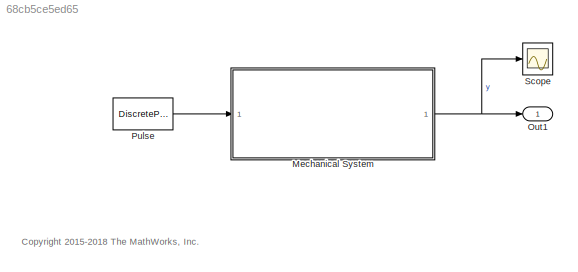
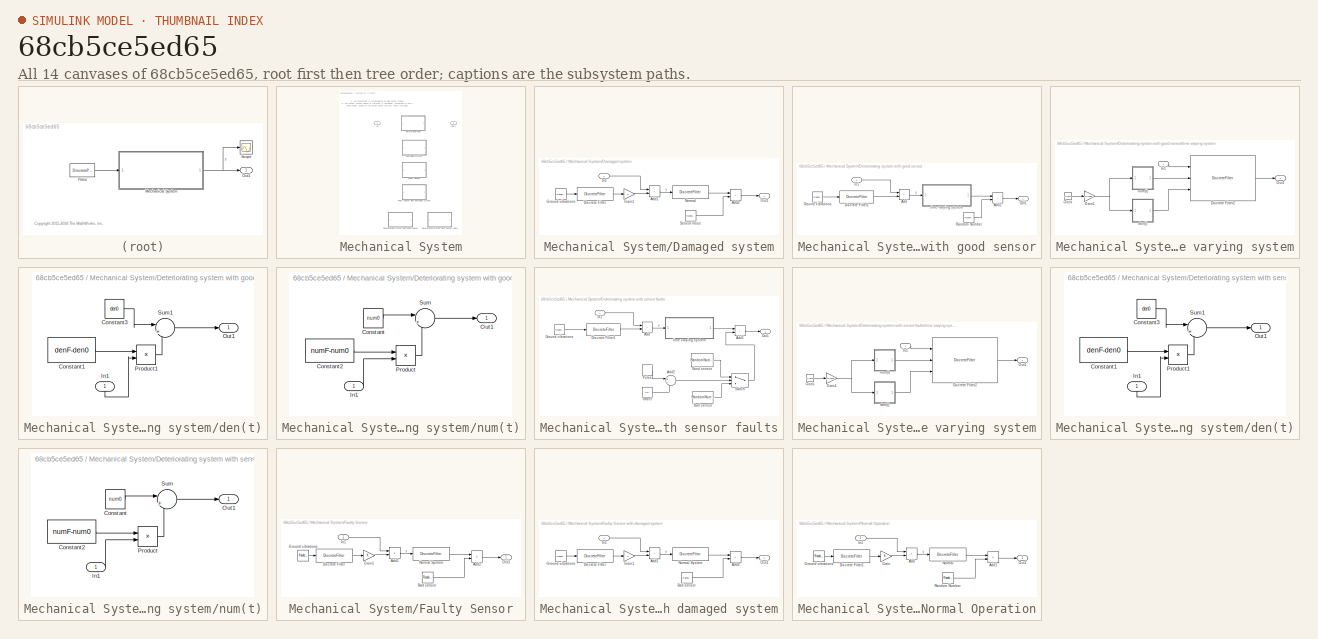
[diagram: thumbnail index - all 14 canvases of the model, root first then tree order]
MODEL slx_68cb5ce5ed65
KIND model
CONFIG AbsTol = auto
CONFIG EnableMultiTasking = on
CONFIG FixedStep = Ts
CONFIG MaxStep = auto
CONFIG MinStep = auto
CONFIG PreLoadFcn = Ts = 1/256;\nt=(0:5120)'*Ts;\nynoi = 0.2;\ngroundnoi = 1;\nPFnum = [0.00034    0.0017652   -0.0013829];\nPFden = [1       -1.896      0.91629];\nnum0 = [1     -0.10075     -0.26052     -0.24022];\nden0 = [1      -4.5049       8.2675      -7.7122       3.6508         -0.7];\nnumF = [1.2642     -0.12736     -0.32935     -0.30369];\ndenF = [1      -4.5674        8.511      -8.0697       3.8856     -0.75805];\n...<+73ch>
CONFIG RelTol = 1e-3
CONFIG SampleTimeConstraint = Unconstrained
CONFIG SolverName = FixedStepDiscrete
CONFIG StartTime = 0.0
CONFIG StopTime = t(end)
BLOCK [SubSystem] Mechanical System
  LabelModeActiveChoice = Normal
  Ports = [1, 1]
  RequestExecContextInheritance = off
  Variant = on
  VariantControlMode = label
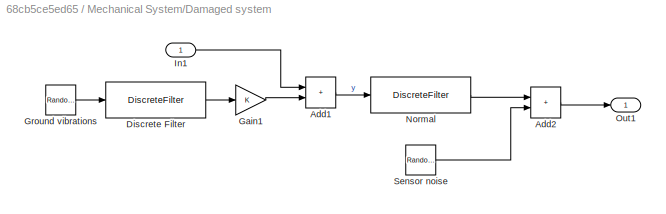
BLOCK [SubSystem] Mechanical System/Damaged system
  Ports = [1, 1]
  RequestExecContextInheritance = off
  VariantControl = DamagedSystem
BLOCK [Sum] Mechanical System/Damaged system/Add1
  IconShape = rectangular
  Ports = [2, 1]
BLOCK [Sum] Mechanical System/Damaged system/Add2
  IconShape = rectangular
  Ports = [2, 1]
BLOCK [DiscreteFilter] Mechanical System/Damaged system/Discrete Filter
  Denominator = PFden
  InputPortMap = u0
  Numerator = PFnum
  Ports = [1, 1]
BLOCK [Gain] Mechanical System/Damaged system/Gain1
BLOCK [RandomNumber] Mechanical System/Damaged system/Ground vibrations
  SampleTime = Ts
  Variance = groundnoi
BLOCK [Inport] Mechanical System/Damaged system/In1
BLOCK [DiscreteFilter] Mechanical System/Damaged system/Normal
  Denominator = denF
  InputPortMap = u0
  Numerator = numF
  Ports = [1, 1]
BLOCK [Outport] Mechanical System/Damaged system/Out1
  VectorParamsAs1DForOutWhenUnconnected = off
BLOCK [RandomNumber] Mechanical System/Damaged system/Sensor noise
  SampleTime = Ts
  Seed = 1
  Variance = ynoi
BLOCK [SubSystem] Mechanical System/Deteriorating system with good sensor
  Ports = [1, 1]
  RequestExecContextInheritance = off
  VariantControl = DeterioratingSystem
BLOCK [Sum] Mechanical System/Deteriorating system with good sensor/Add
  IconShape = rectangular
  Ports = [2, 1]
BLOCK [Sum] Mechanical System/Deteriorating system with good sensor/Add1
  IconShape = rectangular
  Ports = [2, 1]
BLOCK [DiscreteFilter] Mechanical System/Deteriorating system with good sensor/Discrete Filter1
  Denominator = PFden
  InputPortMap = u0
  Numerator = PFnum
  Ports = [1, 1]
BLOCK [RandomNumber] Mechanical System/Deteriorating system with good sensor/Ground vibrations
  SampleTime = Ts
  Seed = seed
  Variance = groundnoi
BLOCK [Inport] Mechanical System/Deteriorating system with good sensor/In1
BLOCK [Outport] Mechanical System/Deteriorating system with good sensor/Out1
  VectorParamsAs1DForOutWhenUnconnected = off
BLOCK [RandomNumber] Mechanical System/Deteriorating system with good sensor/Random Number
  SampleTime = Ts
  Variance = ynoi
BLOCK [SubSystem] Mechanical System/Deteriorating system with good sensor/time varying system
  Ports = [1, 1]
  RequestExecContextInheritance = off
BLOCK [Clock] Mechanical System/Deteriorating system with good sensor/time varying system/Clock
BLOCK [DiscreteFilter] Mechanical System/Deteriorating system with good sensor/time varying system/Discrete Filter2
  Denominator = PFden
  DenominatorSource = Input port
  InputPortMap = u0,p1,p3
  Numerator = PFnum
  NumeratorSource = Input port
  Ports = [3, 1]
  a0EqualsOne = on
BLOCK [Gain] Mechanical System/Deteriorating system with good sensor/time varying system/Gain1
  Gain = 1/t(end)
BLOCK [Inport] Mechanical System/Deteriorating system with good sensor/time varying system/In1
BLOCK [Outport] Mechanical System/Deteriorating system with good sensor/time varying system/Out1
  VectorParamsAs1DForOutWhenUnconnected = off
BLOCK [SubSystem] Mechanical System/Deteriorating system with good sensor/time varying system/den(t)
  Ports = [1, 1]
  RequestExecContextInheritance = off
BLOCK [Constant] Mechanical System/Deteriorating system with good sensor/time varying system/den(t)/Constant1
  SampleTime = Ts
  Value = denF-den0
BLOCK [Constant] Mechanical System/Deteriorating system with good sensor/time varying system/den(t)/Constant3
  SampleTime = Ts
  Value = den0
BLOCK [Inport] Mechanical System/Deteriorating system with good sensor/time varying system/den(t)/In1
  NameLocation = right
  SampleTime = Ts
BLOCK [Outport] Mechanical System/Deteriorating system with good sensor/time varying system/den(t)/Out1
  VectorParamsAs1DForOutWhenUnconnected = off
BLOCK [Product] Mechanical System/Deteriorating system with good sensor/time varying system/den(t)/Product1
  Ports = [2, 1]
BLOCK [Sum] Mechanical System/Deteriorating system with good sensor/time varying system/den(t)/Sum1
  Inputs = |++
  Ports = [2, 1]
BLOCK [SubSystem] Mechanical System/Deteriorating system with good sensor/time varying system/num(t)
  Ports = [1, 1]
  RequestExecContextInheritance = off
BLOCK [Constant] Mechanical System/Deteriorating system with good sensor/time varying system/num(t)/Constant
  SampleTime = Ts
  Value = num0
BLOCK [Constant] Mechanical System/Deteriorating system with good sensor/time varying system/num(t)/Constant2
  SampleTime = Ts
  Value = numF-num0
BLOCK [Inport] Mechanical System/Deteriorating system with good sensor/time varying system/num(t)/In1
  SampleTime = Ts
BLOCK [Outport] Mechanical System/Deteriorating system with good sensor/time varying system/num(t)/Out1
  VectorParamsAs1DForOutWhenUnconnected = off
BLOCK [Product] Mechanical System/Deteriorating system with good sensor/time varying system/num(t)/Product
  Ports = [2, 1]
BLOCK [Sum] Mechanical System/Deteriorating system with good sensor/time varying system/num(t)/Sum
  Inputs = |++
  Ports = [2, 1]
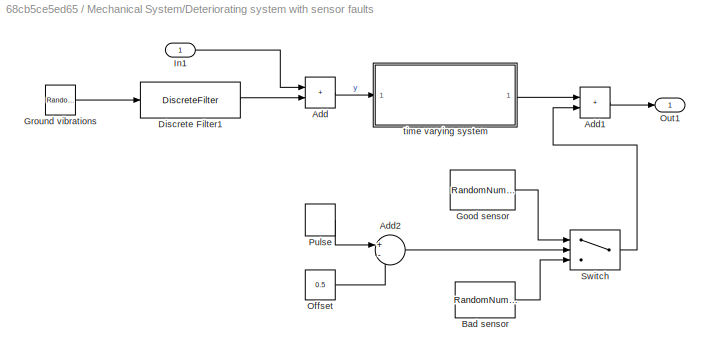
BLOCK [SubSystem] Mechanical System/Deteriorating system with sensor faults
  Ports = [1, 1]
  RequestExecContextInheritance = off
  VariantControl = DeterioratingSystemFaultySensor
BLOCK [Sum] Mechanical System/Deteriorating system with sensor faults/Add
  IconShape = rectangular
  Ports = [2, 1]
BLOCK [Sum] Mechanical System/Deteriorating system with sensor faults/Add1
  IconShape = rectangular
  Ports = [2, 1]
BLOCK [Sum] Mechanical System/Deteriorating system with sensor faults/Add2
  Inputs = +-
  Ports = [2, 1]
BLOCK [RandomNumber] Mechanical System/Deteriorating system with sensor faults/Bad sensor
  Mean = .1
  SampleTime = Ts
  Variance = 3
BLOCK [DiscreteFilter] Mechanical System/Deteriorating system with sensor faults/Discrete Filter1
  Denominator = [1       -1.896      0.91629]
  InputPortMap = u0
  Numerator = [0    0.0017652   -0.0013829]
  Ports = [1, 1]
BLOCK [RandomNumber] Mechanical System/Deteriorating system with sensor faults/Good sensor
  SampleTime = Ts
  Variance = ynoi
BLOCK [RandomNumber] Mechanical System/Deteriorating system with sensor faults/Ground vibrations
  SampleTime = Ts
  Variance = .5
BLOCK [Inport] Mechanical System/Deteriorating system with sensor faults/In1
BLOCK [Constant] Mechanical System/Deteriorating system with sensor faults/Offset
  Value = 0.5
BLOCK [Outport] Mechanical System/Deteriorating system with sensor faults/Out1
  VectorParamsAs1DForOutWhenUnconnected = off
BLOCK [DiscretePulseGenerator] Mechanical System/Deteriorating system with sensor faults/Pulse 
  Period = 1024*12
  Ports = [0, 1]
  PulseWidth = 512*12
  SampleTime = Ts
BLOCK [Switch] Mechanical System/Deteriorating system with sensor faults/Switch
  Criteria = u2 > Threshold
  InputSameDT = off
  SaturateOnIntegerOverflow = off
BLOCK [SubSystem] Mechanical System/Deteriorating system with sensor faults/time varying system
  Ports = [1, 1]
  RequestExecContextInheritance = off
BLOCK [Clock] Mechanical System/Deteriorating system with sensor faults/time varying system/Clock
BLOCK [DiscreteFilter] Mechanical System/Deteriorating system with sensor faults/time varying system/Discrete Filter2
  Denominator = PFden
  DenominatorSource = Input port
  InputPortMap = u0,p1,p3
  Numerator = PFnum
  NumeratorSource = Input port
  Ports = [3, 1]
  a0EqualsOne = on
BLOCK [Gain] Mechanical System/Deteriorating system with sensor faults/time varying system/Gain1
  Gain = 1/t(end)
BLOCK [Inport] Mechanical System/Deteriorating system with sensor faults/time varying system/In1
BLOCK [Outport] Mechanical System/Deteriorating system with sensor faults/time varying system/Out1
  VectorParamsAs1DForOutWhenUnconnected = off
BLOCK [SubSystem] Mechanical System/Deteriorating system with sensor faults/time varying system/den(t)
  Ports = [1, 1]
  RequestExecContextInheritance = off
BLOCK [Constant] Mechanical System/Deteriorating system with sensor faults/time varying system/den(t)/Constant1
  SampleTime = Ts
  Value = denF-den0
BLOCK [Constant] Mechanical System/Deteriorating system with sensor faults/time varying system/den(t)/Constant3
  SampleTime = Ts
  Value = den0
BLOCK [Inport] Mechanical System/Deteriorating system with sensor faults/time varying system/den(t)/In1
  NameLocation = right
  SampleTime = Ts
BLOCK [Outport] Mechanical System/Deteriorating system with sensor faults/time varying system/den(t)/Out1
  VectorParamsAs1DForOutWhenUnconnected = off
BLOCK [Product] Mechanical System/Deteriorating system with sensor faults/time varying system/den(t)/Product1
  Ports = [2, 1]
BLOCK [Sum] Mechanical System/Deteriorating system with sensor faults/time varying system/den(t)/Sum1
  Inputs = |++
  Ports = [2, 1]
BLOCK [SubSystem] Mechanical System/Deteriorating system with sensor faults/time varying system/num(t)
  Ports = [1, 1]
  RequestExecContextInheritance = off
BLOCK [Constant] Mechanical System/Deteriorating system with sensor faults/time varying system/num(t)/Constant
  SampleTime = Ts
  Value = num0
BLOCK [Constant] Mechanical System/Deteriorating system with sensor faults/time varying system/num(t)/Constant2
  SampleTime = Ts
  Value = numF-num0
BLOCK [Inport] Mechanical System/Deteriorating system with sensor faults/time varying system/num(t)/In1
  SampleTime = Ts
BLOCK [Outport] Mechanical System/Deteriorating system with sensor faults/time varying system/num(t)/Out1
  VectorParamsAs1DForOutWhenUnconnected = off
BLOCK [Product] Mechanical System/Deteriorating system with sensor faults/time varying system/num(t)/Product
  Ports = [2, 1]
BLOCK [Sum] Mechanical System/Deteriorating system with sensor faults/time varying system/num(t)/Sum
  Inputs = |++
  Ports = [2, 1]
BLOCK [SubSystem] Mechanical System/Faulty Sensor
  Ports = [1, 1]
  RequestExecContextInheritance = off
  VariantControl = FaultySensor
BLOCK [SubSystem] Mechanical System/Faulty Sensor with damaged system
  Ports = [1, 1]
  RequestExecContextInheritance = off
  VariantControl = DamagedSystemFaultySensor
BLOCK [Sum] Mechanical System/Faulty Sensor with damaged system/Add1
  IconShape = rectangular
  Ports = [2, 1]
BLOCK [Sum] Mechanical System/Faulty Sensor with damaged system/Add2
  IconShape = rectangular
  Ports = [2, 1]
BLOCK [RandomNumber] Mechanical System/Faulty Sensor with damaged system/Bad sensor
  Mean = .1
  SampleTime = Ts
  Variance = 3
BLOCK [DiscreteFilter] Mechanical System/Faulty Sensor with damaged system/Discrete Filter
  Denominator = PFden
  InputPortMap = u0
  Numerator = PFnum
  Ports = [1, 1]
BLOCK [Gain] Mechanical System/Faulty Sensor with damaged system/Gain1
BLOCK [RandomNumber] Mechanical System/Faulty Sensor with damaged system/Ground vibrations
  SampleTime = Ts
  Variance = groundnoi
BLOCK [Inport] Mechanical System/Faulty Sensor with damaged system/In1
BLOCK [DiscreteFilter] Mechanical System/Faulty Sensor with damaged system/Normal System
  Denominator = denF
  InputPortMap = u0
  Numerator = numF
  Ports = [1, 1]
BLOCK [Outport] Mechanical System/Faulty Sensor with damaged system/Out1
  VectorParamsAs1DForOutWhenUnconnected = off
BLOCK [Sum] Mechanical System/Faulty Sensor/Add1
  IconShape = rectangular
  Ports = [2, 1]
BLOCK [Sum] Mechanical System/Faulty Sensor/Add2
  IconShape = rectangular
  Ports = [2, 1]
BLOCK [RandomNumber] Mechanical System/Faulty Sensor/Bad sensor
  Mean = .1
  SampleTime = Ts
  Variance = 3
BLOCK [DiscreteFilter] Mechanical System/Faulty Sensor/Discrete Filter
  Denominator = PFden
  InputPortMap = u0
  Numerator = PFnum
  Ports = [1, 1]
BLOCK [Gain] Mechanical System/Faulty Sensor/Gain1
BLOCK [RandomNumber] Mechanical System/Faulty Sensor/Ground vibrations
  SampleTime = Ts
  Variance = groundnoi
BLOCK [Inport] Mechanical System/Faulty Sensor/In1
BLOCK [DiscreteFilter] Mechanical System/Faulty Sensor/Normal System
  Denominator = den0
  InputPortMap = u0
  Numerator = num0
  Ports = [1, 1]
BLOCK [Outport] Mechanical System/Faulty Sensor/Out1
  VectorParamsAs1DForOutWhenUnconnected = off
BLOCK [Inport] Mechanical System/In1
BLOCK [SubSystem] Mechanical System/Normal Operation
  Ports = [1, 1]
  RequestExecContextInheritance = off
  VariantControl = Normal
BLOCK [Sum] Mechanical System/Normal Operation/Add
  IconShape = rectangular
  Ports = [2, 1]
BLOCK [Sum] Mechanical System/Normal Operation/Add1
  IconShape = rectangular
  Ports = [2, 1]
BLOCK [DiscreteFilter] Mechanical System/Normal Operation/Discrete Filter1
  Denominator = PFden
  InputPortMap = u0
  Numerator = PFnum
  Ports = [1, 1]
BLOCK [Gain] Mechanical System/Normal Operation/Gain
BLOCK [RandomNumber] Mechanical System/Normal Operation/Ground vibrations
  SampleTime = Ts
  Variance = groundnoi
BLOCK [Inport] Mechanical System/Normal Operation/In1
BLOCK [DiscreteFilter] Mechanical System/Normal Operation/Normal
  Denominator = den0
  InputPortMap = u0
  Numerator = num0
  Ports = [1, 1]
BLOCK [Outport] Mechanical System/Normal Operation/Out1
  VectorParamsAs1DForOutWhenUnconnected = off
BLOCK [RandomNumber] Mechanical System/Normal Operation/Random Number
  SampleTime = Ts
  Variance = ynoi
BLOCK [Outport] Mechanical System/Out1
  VectorParamsAs1DForOutWhenUnconnected = off
BLOCK [Outport] Out1
  VectorParamsAs1DForOutWhenUnconnected = off
BLOCK [DiscretePulseGenerator] Pulse
  Amplitude = 5
  Period = 512
  Ports = [0, 1]
  SampleTime = Ts
BLOCK [Scope] Scope
  Floating = off
  NumInputPorts = 1
  Ports = [1]
  ScopeSpecificationString = Simulink.scopes.TimeScopeBlockCfg('CurrentConfiguration', extmgr.ConfigurationSet(extmgr.Configuration('Core','General UI',true),extmgr.Configuration('Core','Source UI',true),extmgr.Configuration('Sources','WiredSimulink',true),extmgr.Configuration('Visuals','Time Domain',true,'SerializedDisplays',{struct('MinYLimReal','-1356.99374','MaxYLimReal','1616.4642','YLabelReal','','MinYLimMag','  0.00000...<+1443ch>
ANNOTATION (root): <copyright redacted>
ANNOTATION Mechanical System: 1) Add Subsystem or Model blocks as valid variant choices. 2) You cannot connect blocks at this level. At simulation, connectivity is automatically determined, based on the active variant and port name matching.
LINE Mechanical System/Damaged system/Add1:1 -> Mechanical System/Damaged system/Normal:1
LINE Mechanical System/Damaged system/Add2:1 -> Mechanical System/Damaged system/Out1:1
LINE Mechanical System/Damaged system/Discrete Filter:1 -> Mechanical System/Damaged system/Gain1:1
LINE Mechanical System/Damaged system/Gain1:1 -> Mechanical System/Damaged system/Add1:2
LINE Mechanical System/Damaged system/Ground vibrations:1 -> Mechanical System/Damaged system/Discrete Filter:1
LINE Mechanical System/Damaged system/In1:1 -> Mechanical System/Damaged system/Add1:1
LINE Mechanical System/Damaged system/Normal:1 -> Mechanical System/Damaged system/Add2:1
LINE Mechanical System/Damaged system/Sensor noise:1 -> Mechanical System/Damaged system/Add2:2
LINE Mechanical System/Deteriorating system with good sensor/Add1:1 -> Mechanical System/Deteriorating system with good sensor/Out1:1
LINE Mechanical System/Deteriorating system with good sensor/Add:1 -> Mechanical System/Deteriorating system with good sensor/time varying system:1
LINE Mechanical System/Deteriorating system with good sensor/Discrete Filter1:1 -> Mechanical System/Deteriorating system with good sensor/Add:2
LINE Mechanical System/Deteriorating system with good sensor/Ground vibrations:1 -> Mechanical System/Deteriorating system with good sensor/Discrete Filter1:1
LINE Mechanical System/Deteriorating system with good sensor/In1:1 -> Mechanical System/Deteriorating system with good sensor/Add:1
LINE Mechanical System/Deteriorating system with good sensor/Random Number:1 -> Mechanical System/Deteriorating system with good sensor/Add1:2
LINE Mechanical System/Deteriorating system with good sensor/time varying system/Clock:1 -> Mechanical System/Deteriorating system with good sensor/time varying system/Gain1:1
LINE Mechanical System/Deteriorating system with good sensor/time varying system/Discrete Filter2:1 -> Mechanical System/Deteriorating system with good sensor/time varying system/Out1:1
NET Mechanical System/Deteriorating system with good sensor/time varying system/Gain1:1 -> Mechanical System/Deteriorating system with good sensor/time varying system/den(t):1, Mechanical System/Deteriorating system with good sensor/time varying system/num(t):1
LINE Mechanical System/Deteriorating system with good sensor/time varying system/In1:1 -> Mechanical System/Deteriorating system with good sensor/time varying system/Discrete Filter2:1
LINE Mechanical System/Deteriorating system with good sensor/time varying system/den(t)/Constant1:1 -> Mechanical System/Deteriorating system with good sensor/time varying system/den(t)/Product1:1
LINE Mechanical System/Deteriorating system with good sensor/time varying system/den(t)/Constant3:1 -> Mechanical System/Deteriorating system with good sensor/time varying system/den(t)/Sum1:1
LINE Mechanical System/Deteriorating system with good sensor/time varying system/den(t)/In1:1 -> Mechanical System/Deteriorating system with good sensor/time varying system/den(t)/Product1:2
LINE Mechanical System/Deteriorating system with good sensor/time varying system/den(t)/Product1:1 -> Mechanical System/Deteriorating system with good sensor/time varying system/den(t)/Sum1:2
LINE Mechanical System/Deteriorating system with good sensor/time varying system/den(t)/Sum1:1 -> Mechanical System/Deteriorating system with good sensor/time varying system/den(t)/Out1:1
LINE Mechanical System/Deteriorating system with good sensor/time varying system/den(t):1 -> Mechanical System/Deteriorating system with good sensor/time varying system/Discrete Filter2:3
LINE Mechanical System/Deteriorating system with good sensor/time varying system/num(t)/Constant2:1 -> Mechanical System/Deteriorating system with good sensor/time varying system/num(t)/Product:1
LINE Mechanical System/Deteriorating system with good sensor/time varying system/num(t)/Constant:1 -> Mechanical System/Deteriorating system with good sensor/time varying system/num(t)/Sum:1
LINE Mechanical System/Deteriorating system with good sensor/time varying system/num(t)/In1:1 -> Mechanical System/Deteriorating system with good sensor/time varying system/num(t)/Product:2
LINE Mechanical System/Deteriorating system with good sensor/time varying system/num(t)/Product:1 -> Mechanical System/Deteriorating system with good sensor/time varying system/num(t)/Sum:2
LINE Mechanical System/Deteriorating system with good sensor/time varying system/num(t)/Sum:1 -> Mechanical System/Deteriorating system with good sensor/time varying system/num(t)/Out1:1
LINE Mechanical System/Deteriorating system with good sensor/time varying system/num(t):1 -> Mechanical System/Deteriorating system with good sensor/time varying system/Discrete Filter2:2
LINE Mechanical System/Deteriorating system with good sensor/time varying system:1 -> Mechanical System/Deteriorating system with good sensor/Add1:1
LINE Mechanical System/Deteriorating system with sensor faults/Add1:1 -> Mechanical System/Deteriorating system with sensor faults/Out1:1
LINE Mechanical System/Deteriorating system with sensor faults/Add2:1 -> Mechanical System/Deteriorating system with sensor faults/Switch:2
LINE Mechanical System/Deteriorating system with sensor faults/Add:1 -> Mechanical System/Deteriorating system with sensor faults/time varying system:1
LINE Mechanical System/Deteriorating system with sensor faults/Bad sensor:1 -> Mechanical System/Deteriorating system with sensor faults/Switch:3
LINE Mechanical System/Deteriorating system with sensor faults/Discrete Filter1:1 -> Mechanical System/Deteriorating system with sensor faults/Add:2
LINE Mechanical System/Deteriorating system with sensor faults/Good sensor:1 -> Mechanical System/Deteriorating system with sensor faults/Switch:1
LINE Mechanical System/Deteriorating system with sensor faults/Ground vibrations:1 -> Mechanical System/Deteriorating system with sensor faults/Discrete Filter1:1
LINE Mechanical System/Deteriorating system with sensor faults/In1:1 -> Mechanical System/Deteriorating system with sensor faults/Add:1
LINE Mechanical System/Deteriorating system with sensor faults/Offset:1 -> Mechanical System/Deteriorating system with sensor faults/Add2:2
LINE Mechanical System/Deteriorating system with sensor faults/Pulse :1 -> Mechanical System/Deteriorating system with sensor faults/Add2:1
LINE Mechanical System/Deteriorating system with sensor faults/Switch:1 -> Mechanical System/Deteriorating system with sensor faults/Add1:2
LINE Mechanical System/Deteriorating system with sensor faults/time varying system/Clock:1 -> Mechanical System/Deteriorating system with sensor faults/time varying system/Gain1:1
LINE Mechanical System/Deteriorating system with sensor faults/time varying system/Discrete Filter2:1 -> Mechanical System/Deteriorating system with sensor faults/time varying system/Out1:1
NET Mechanical System/Deteriorating system with sensor faults/time varying system/Gain1:1 -> Mechanical System/Deteriorating system with sensor faults/time varying system/den(t):1, Mechanical System/Deteriorating system with sensor faults/time varying system/num(t):1
LINE Mechanical System/Deteriorating system with sensor faults/time varying system/In1:1 -> Mechanical System/Deteriorating system with sensor faults/time varying system/Discrete Filter2:1
LINE Mechanical System/Deteriorating system with sensor faults/time varying system/den(t)/Constant1:1 -> Mechanical System/Deteriorating system with sensor faults/time varying system/den(t)/Product1:1
LINE Mechanical System/Deteriorating system with sensor faults/time varying system/den(t)/Constant3:1 -> Mechanical System/Deteriorating system with sensor faults/time varying system/den(t)/Sum1:1
LINE Mechanical System/Deteriorating system with sensor faults/time varying system/den(t)/In1:1 -> Mechanical System/Deteriorating system with sensor faults/time varying system/den(t)/Product1:2
LINE Mechanical System/Deteriorating system with sensor faults/time varying system/den(t)/Product1:1 -> Mechanical System/Deteriorating system with sensor faults/time varying system/den(t)/Sum1:2
LINE Mechanical System/Deteriorating system with sensor faults/time varying system/den(t)/Sum1:1 -> Mechanical System/Deteriorating system with sensor faults/time varying system/den(t)/Out1:1
LINE Mechanical System/Deteriorating system with sensor faults/time varying system/den(t):1 -> Mechanical System/Deteriorating system with sensor faults/time varying system/Discrete Filter2:3
LINE Mechanical System/Deteriorating system with sensor faults/time varying system/num(t)/Constant2:1 -> Mechanical System/Deteriorating system with sensor faults/time varying system/num(t)/Product:1
LINE Mechanical System/Deteriorating system with sensor faults/time varying system/num(t)/Constant:1 -> Mechanical System/Deteriorating system with sensor faults/time varying system/num(t)/Sum:1
LINE Mechanical System/Deteriorating system with sensor faults/time varying system/num(t)/In1:1 -> Mechanical System/Deteriorating system with sensor faults/time varying system/num(t)/Product:2
LINE Mechanical System/Deteriorating system with sensor faults/time varying system/num(t)/Product:1 -> Mechanical System/Deteriorating system with sensor faults/time varying system/num(t)/Sum:2
LINE Mechanical System/Deteriorating system with sensor faults/time varying system/num(t)/Sum:1 -> Mechanical System/Deteriorating system with sensor faults/time varying system/num(t)/Out1:1
LINE Mechanical System/Deteriorating system with sensor faults/time varying system/num(t):1 -> Mechanical System/Deteriorating system with sensor faults/time varying system/Discrete Filter2:2
LINE Mechanical System/Deteriorating system with sensor faults/time varying system:1 -> Mechanical System/Deteriorating system with sensor faults/Add1:1
LINE Mechanical System/Faulty Sensor with damaged system/Add1:1 -> Mechanical System/Faulty Sensor with damaged system/Normal System:1
LINE Mechanical System/Faulty Sensor with damaged system/Add2:1 -> Mechanical System/Faulty Sensor with damaged system/Out1:1
LINE Mechanical System/Faulty Sensor with damaged system/Bad sensor:1 -> Mechanical System/Faulty Sensor with damaged system/Add2:2
LINE Mechanical System/Faulty Sensor with damaged system/Discrete Filter:1 -> Mechanical System/Faulty Sensor with damaged system/Gain1:1
LINE Mechanical System/Faulty Sensor with damaged system/Gain1:1 -> Mechanical System/Faulty Sensor with damaged system/Add1:2
LINE Mechanical System/Faulty Sensor with damaged system/Ground vibrations:1 -> Mechanical System/Faulty Sensor with damaged system/Discrete Filter:1
LINE Mechanical System/Faulty Sensor with damaged system/In1:1 -> Mechanical System/Faulty Sensor with damaged system/Add1:1
LINE Mechanical System/Faulty Sensor with damaged system/Normal System:1 -> Mechanical System/Faulty Sensor with damaged system/Add2:1
LINE Mechanical System/Faulty Sensor/Add1:1 -> Mechanical System/Faulty Sensor/Normal System:1
LINE Mechanical System/Faulty Sensor/Add2:1 -> Mechanical System/Faulty Sensor/Out1:1
LINE Mechanical System/Faulty Sensor/Bad sensor:1 -> Mechanical System/Faulty Sensor/Add2:2
LINE Mechanical System/Faulty Sensor/Discrete Filter:1 -> Mechanical System/Faulty Sensor/Gain1:1
LINE Mechanical System/Faulty Sensor/Gain1:1 -> Mechanical System/Faulty Sensor/Add1:2
LINE Mechanical System/Faulty Sensor/Ground vibrations:1 -> Mechanical System/Faulty Sensor/Discrete Filter:1
LINE Mechanical System/Faulty Sensor/In1:1 -> Mechanical System/Faulty Sensor/Add1:1
LINE Mechanical System/Faulty Sensor/Normal System:1 -> Mechanical System/Faulty Sensor/Add2:1
LINE Mechanical System/Normal Operation/Add1:1 -> Mechanical System/Normal Operation/Out1:1
LINE Mechanical System/Normal Operation/Add:1 -> Mechanical System/Normal Operation/Normal:1
LINE Mechanical System/Normal Operation/Discrete Filter1:1 -> Mechanical System/Normal Operation/Gain:1
LINE Mechanical System/Normal Operation/Gain:1 -> Mechanical System/Normal Operation/Add:2
LINE Mechanical System/Normal Operation/Ground vibrations:1 -> Mechanical System/Normal Operation/Discrete Filter1:1
LINE Mechanical System/Normal Operation/In1:1 -> Mechanical System/Normal Operation/Add:1
LINE Mechanical System/Normal Operation/Normal:1 -> Mechanical System/Normal Operation/Add1:1
LINE Mechanical System/Normal Operation/Random Number:1 -> Mechanical System/Normal Operation/Add1:2
NET Mechanical System:1 -> Out1:1, Scope:1
LINE Pulse:1 -> Mechanical System:1
note: NET lines group one-source signal fan-out (src -> all destinations, sorted); 1:1 wires keep LINE
